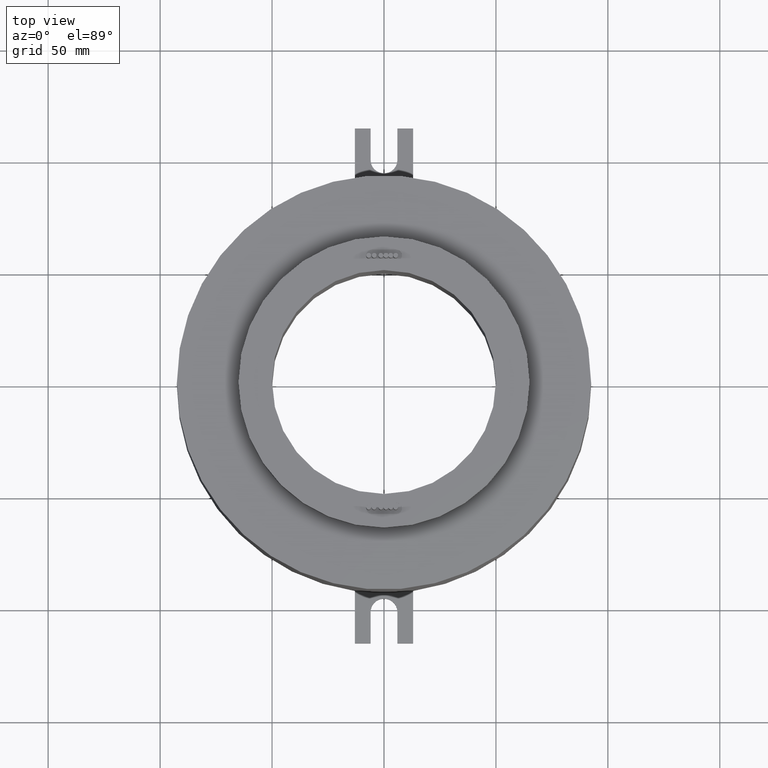
[diagram: clean part render]
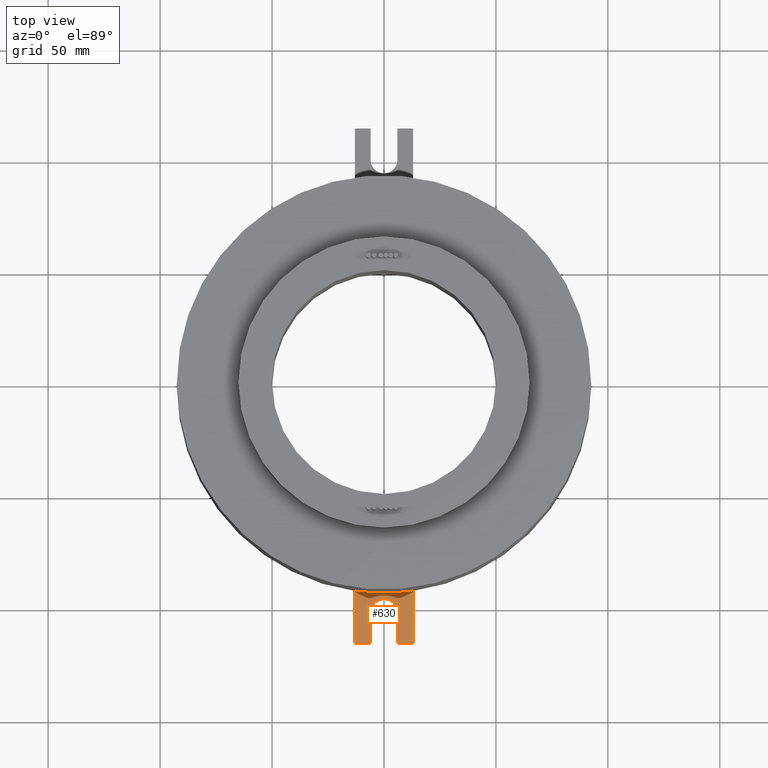
[diagram: same view with one face highlighted and labeled with its STEP entity id]
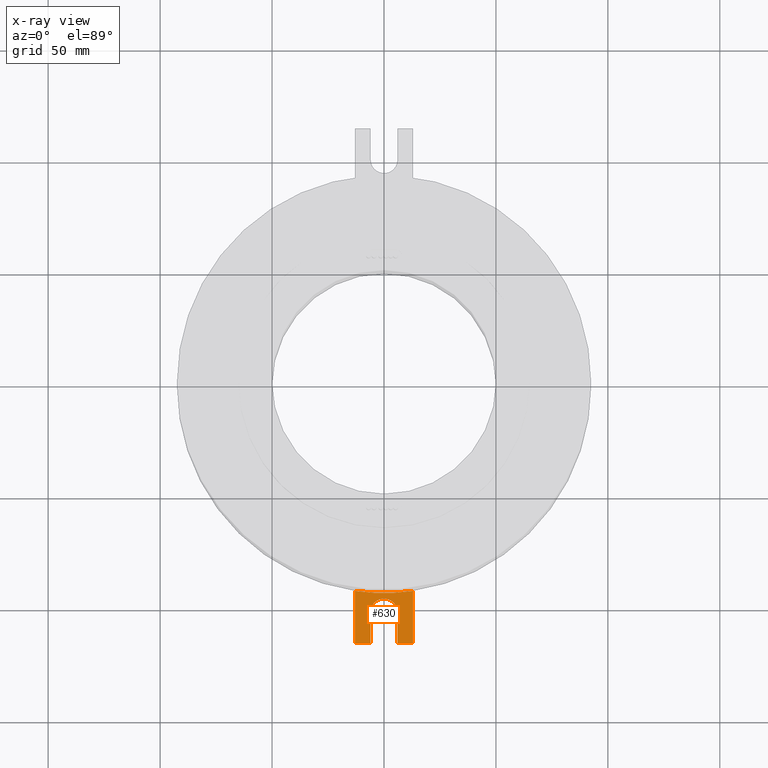
[diagram: x-ray of the same camera — body ghosted, the highlighted face saturated]
A machine part, top view. The second image highlights one B-rep face of the part: STEP entity #630.
The next image is the same camera in x-ray: the body ghosted, the highlighted face saturated — about 0% of this face is hidden behind the body in this view.
In plain terms, the highlighted planar face has unit normal (0, -0, 1).
Its self-contained STEP definition (entity closure, byte-faithful):
#78 = CIRCLE ( 'NONE', #1247, 92.50000000000000000 ) ;
#180 = CARTESIAN_POINT ( 'NONE',  ( -13.00000000000000000, -91.58193053217429700, -102.0000000000000100 ) ) ;
#234 = VERTEX_POINT ( 'NONE', #3863 ) ;
#270 = FACE_OUTER_BOUND ( 'NONE', #2034, .T. ) ;
#503 = VERTEX_POINT ( 'NONE', #3754 ) ;
#512 = ORIENTED_EDGE ( 'NONE', *, *, #1268, .F. ) ;
#553 = CARTESIAN_POINT ( 'NONE',  ( -6.000000000000000000, -115.0000000000000000, -102.0000000000000100 ) ) ;
#630 = ADVANCED_FACE ( 'NONE', ( #270 ), #5050, .T. ) ;
#732 = CARTESIAN_POINT ( 'NONE',  ( 0.0000000000000000000, -101.0000000000000000, -102.0000000000000100 ) ) ;
#865 = DIRECTION ( 'NONE',  ( 0.0000000000000000000, -1.000000000000000000, 0.0000000000000000000 ) ) ;
#924 = AXIS2_PLACEMENT_3D ( 'NONE', #2353, #5118, #2755 ) ;
#1034 = CARTESIAN_POINT ( 'NONE',  ( 13.00000000000000200, -115.0000000000000000, -102.0000000000000100 ) ) ;
#1125 = DIRECTION ( 'NONE',  ( 1.000000000000000000, 0.0000000000000000000, -0.0000000000000000000 ) ) ;
#1203 = ORIENTED_EDGE ( 'NONE', *, *, #2793, .F. ) ;
#1221 = ORIENTED_EDGE ( 'NONE', *, *, #3703, .F. ) ;
#1236 = DIRECTION ( 'NONE',  ( -0.0000000000000000000, -0.0000000000000000000, 1.000000000000000000 ) ) ;
#1246 = EDGE_CURVE ( 'NONE', #3529, #3712, #3100, .T. ) ;
#1247 = AXIS2_PLACEMENT_3D ( 'NONE', #3572, #1236, #3979 ) ;
#1268 = EDGE_CURVE ( 'NONE', #234, #3529, #5088, .T. ) ;
#1269 = CARTESIAN_POINT ( 'NONE',  ( -6.000000000000000000, -101.0000000000000000, -102.0000000000000100 ) ) ;
#1452 = ORIENTED_EDGE ( 'NONE', *, *, #1246, .F. ) ;
#1584 = VECTOR ( 'NONE', #3282, 1000.000000000000000 ) ;
#1625 = AXIS2_PLACEMENT_3D ( 'NONE', #732, #3463, #1125 ) ;
#1874 = VECTOR ( 'NONE', #4301, 1000.000000000000000 ) ;
#1953 = DIRECTION ( 'NONE',  ( -1.000000000000000000, 0.0000000000000000000, 0.0000000000000000000 ) ) ;
#2034 = EDGE_LOOP ( 'NONE', ( #4850, #1221, #1203, #3368, #4363, #4060, #1452, #512 ) ) ;
#2161 = VERTEX_POINT ( 'NONE', #4331 ) ;
#2175 = VECTOR ( 'NONE', #2315, 1000.000000000000000 ) ;
#2302 = CIRCLE ( 'NONE', #924, 6.000000000000000000 ) ;
#2315 = DIRECTION ( 'NONE',  ( -8.673617379884036700E-017, 1.000000000000000000, 0.0000000000000000000 ) ) ;
#2353 = CARTESIAN_POINT ( 'NONE',  ( 0.0000000000000000000, -101.0000000000000000, -102.0000000000000100 ) ) ;
#2505 = EDGE_CURVE ( 'NONE', #503, #5060, #2302, .T. ) ;
#2755 = DIRECTION ( 'NONE',  ( 1.000000000000000000, 0.0000000000000000000, 0.0000000000000000000 ) ) ;
#2793 = EDGE_CURVE ( 'NONE', #4379, #2161, #3776, .T. ) ;
#2898 = CARTESIAN_POINT ( 'NONE',  ( -6.000000000000000000, -115.0000000000000000, -102.0000000000000100 ) ) ;
#2954 = VECTOR ( 'NONE', #865, 1000.000000000000000 ) ;
#3100 = LINE ( 'NONE', #4312, #4035 ) ;
#3206 = LINE ( 'NONE', #5072, #2175 ) ;
#3282 = DIRECTION ( 'NONE',  ( -1.000000000000000000, 1.982541115402066100E-015, 0.0000000000000000000 ) ) ;
#3323 = LINE ( 'NONE', #1269, #2954 ) ;
#3368 = ORIENTED_EDGE ( 'NONE', *, *, #4683, .F. ) ;
#3463 = DIRECTION ( 'NONE',  ( 0.0000000000000000000, -0.0000000000000000000, 1.000000000000000000 ) ) ;
#3465 = CARTESIAN_POINT ( 'NONE',  ( 13.00000000000000200, -115.0000000000000000, -102.0000000000000100 ) ) ;
#3517 = DIRECTION ( 'NONE',  ( 8.673617379884034200E-017, -1.000000000000000000, -0.0000000000000000000 ) ) ;
#3529 = VERTEX_POINT ( 'NONE', #1034 ) ;
#3572 = CARTESIAN_POINT ( 'NONE',  ( 0.0000000000000000000, 0.0000000000000000000, -102.0000000000000100 ) ) ;
#3703 = EDGE_CURVE ( 'NONE', #2161, #4409, #3206, .T. ) ;
#3710 = LINE ( 'NONE', #4686, #1874 ) ;
#3712 = VERTEX_POINT ( 'NONE', #3894 ) ;
#3754 = CARTESIAN_POINT ( 'NONE',  ( 6.000000000000000000, -101.0000000000000000, -102.0000000000000100 ) ) ;
#3776 = LINE ( 'NONE', #553, #1584 ) ;
#3863 = CARTESIAN_POINT ( 'NONE',  ( 13.00000000000000000, -91.58193053217431200, -102.0000000000000100 ) ) ;
#3894 = CARTESIAN_POINT ( 'NONE',  ( 6.000000000000000000, -115.0000000000000000, -102.0000000000000100 ) ) ;
#3913 = VECTOR ( 'NONE', #3517, 1000.000000000000000 ) ;
#3979 = DIRECTION ( 'NONE',  ( 1.000000000000000000, 0.0000000000000000000, 0.0000000000000000000 ) ) ;
#4035 = VECTOR ( 'NONE', #1953, 1000.000000000000000 ) ;
#4060 = ORIENTED_EDGE ( 'NONE', *, *, #4571, .F. ) ;
#4232 = EDGE_CURVE ( 'NONE', #4409, #234, #78, .T. ) ;
#4301 = DIRECTION ( 'NONE',  ( -0.0000000000000000000, 1.000000000000000000, -0.0000000000000000000 ) ) ;
#4312 = CARTESIAN_POINT ( 'NONE',  ( 13.00000000000000200, -115.0000000000000000, -102.0000000000000100 ) ) ;
#4331 = CARTESIAN_POINT ( 'NONE',  ( -12.99999999999999800, -114.9999999999999900, -102.0000000000000100 ) ) ;
#4363 = ORIENTED_EDGE ( 'NONE', *, *, #2505, .F. ) ;
#4374 = CARTESIAN_POINT ( 'NONE',  ( -6.000000000000000000, -101.0000000000000000, -102.0000000000000100 ) ) ;
#4379 = VERTEX_POINT ( 'NONE', #2898 ) ;
#4409 = VERTEX_POINT ( 'NONE', #180 ) ;
#4571 = EDGE_CURVE ( 'NONE', #3712, #503, #3710, .T. ) ;
#4683 = EDGE_CURVE ( 'NONE', #5060, #4379, #3323, .T. ) ;
#4686 = CARTESIAN_POINT ( 'NONE',  ( 6.000000000000000000, -101.0000000000000000, -102.0000000000000100 ) ) ;
#4850 = ORIENTED_EDGE ( 'NONE', *, *, #4232, .F. ) ;
#5050 = PLANE ( 'NONE',  #1625 ) ;
#5060 = VERTEX_POINT ( 'NONE', #4374 ) ;
#5072 = CARTESIAN_POINT ( 'NONE',  ( -12.99999999999999800, -114.9999999999999900, -102.0000000000000100 ) ) ;
#5088 = LINE ( 'NONE', #3465, #3913 ) ;
#5118 = DIRECTION ( 'NONE',  ( 0.0000000000000000000, -0.0000000000000000000, 1.000000000000000000 ) ) ;